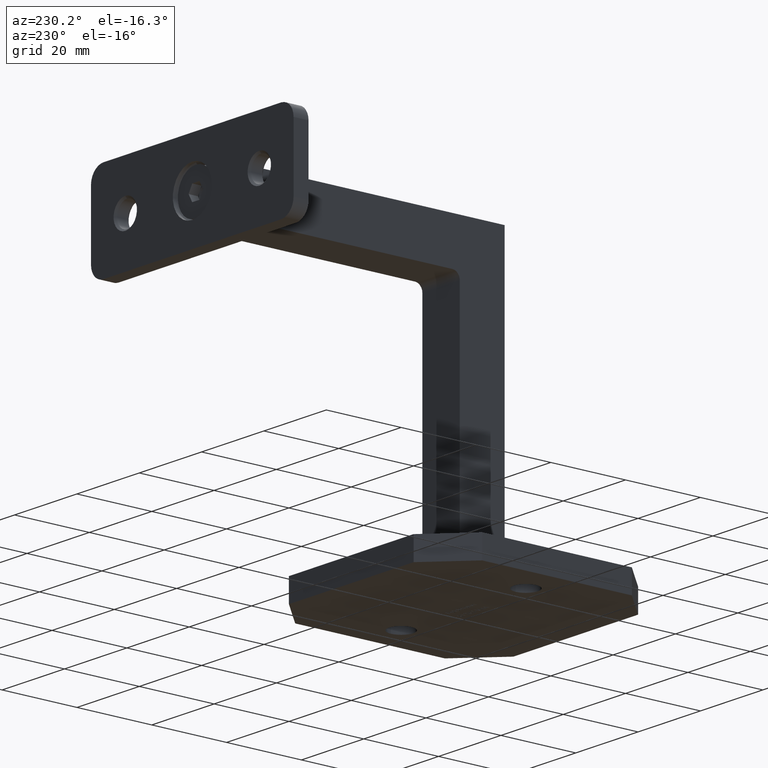
[diagram: clean part render]
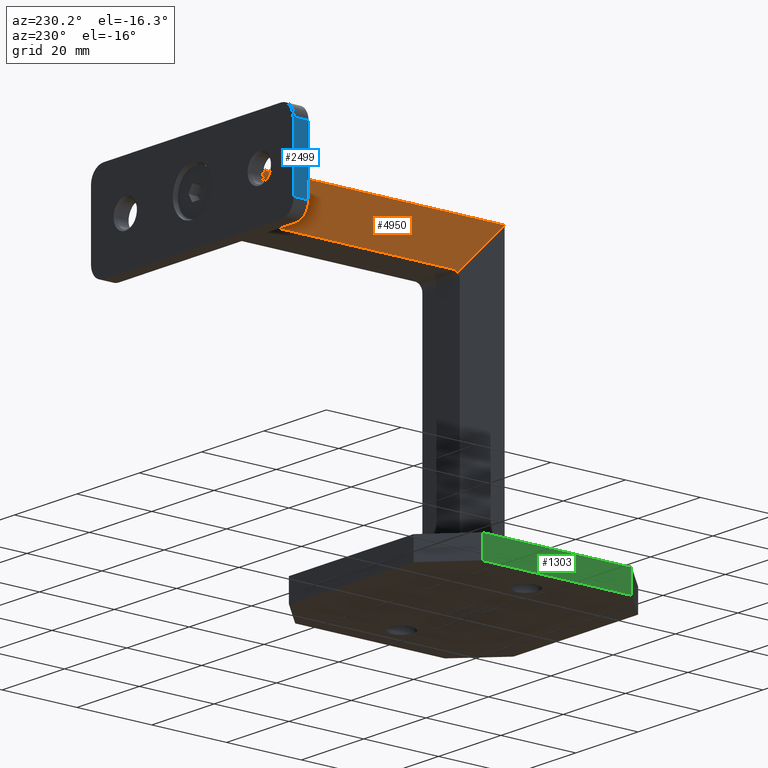
[diagram: same view with three faces highlighted in distinct colors, each labeled with its STEP entity id]
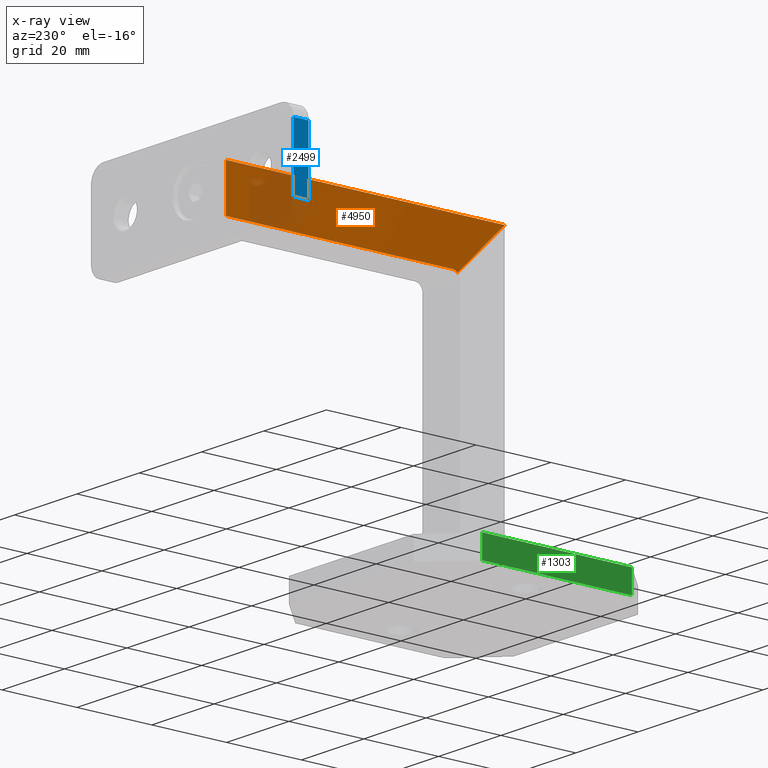
[diagram: x-ray of the same camera — body ghosted, the three highlighted faces saturated]
A machine part, auxiliary view with three faces highlighted in distinct colors.
The next image is the same camera in x-ray (body ghosted, the three faces saturated) — at least one of them is partly hidden behind the body in this view.
Their STEP definitions:

[orange] entity #4950 — the highlighted planar face has unit normal (1, 0, 0).
#1800 = VERTEX_POINT ( 'NONE', #13289 ) ;
#2454 = VECTOR ( 'NONE', #5880, 1000.000000000000000 ) ;
#3154 = DIRECTION ( 'NONE',  ( -1.445602896647339410E-16, 0.000000000000000000, 1.000000000000000000 ) ) ;
#3245 = EDGE_CURVE ( 'NONE', #1800, #18508, #17105, .T. ) ;
#4950 = ADVANCED_FACE ( 'NONE', ( #10665 ), #13741, .F. ) ;
#4984 = CARTESIAN_POINT ( 'NONE',  ( -5.999999999999997335, 7.999999999999992895, 64.99999999999997158 ) ) ;
#5278 = CARTESIAN_POINT ( 'NONE',  ( -5.999999999999999112, -6.000000000000011546, 78.99999999999997158 ) ) ;
#5509 = VECTOR ( 'NONE', #20075, 1000.000000000000000 ) ;
#5870 = CARTESIAN_POINT ( 'NONE',  ( -5.999999999999999112, -6.000000000000011546, 78.99999999999997158 ) ) ;
#5880 = DIRECTION ( 'NONE',  ( 0.000000000000000000, 1.000000000000000000, 0.000000000000000000 ) ) ;
#5898 = AXIS2_PLACEMENT_3D ( 'NONE', #17160, #22446, #18874 ) ;
#6310 = LINE ( 'NONE', #5278, #8813 ) ;
#6504 = EDGE_CURVE ( 'NONE', #7336, #17936, #10704, .T. ) ;
#6863 = CARTESIAN_POINT ( 'NONE',  ( -5.999999999999999112, 68.49999999999998579, 78.99999999999997158 ) ) ;
#7132 = EDGE_LOOP ( 'NONE', ( #22220, #7488, #11928, #14655, #14183 ) ) ;
#7336 = VERTEX_POINT ( 'NONE', #11116 ) ;
#7488 = ORIENTED_EDGE ( 'NONE', *, *, #13282, .F. ) ;
#8813 = VECTOR ( 'NONE', #19452, 1000.000000000000000 ) ;
#10665 = FACE_OUTER_BOUND ( 'NONE', #7132, .T. ) ;
#10704 = CIRCLE ( 'NONE', #12488, 2.000000000000001776 ) ;
#10730 = VERTEX_POINT ( 'NONE', #5870 ) ;
#11116 = CARTESIAN_POINT ( 'NONE',  ( -5.999999999999997335, 7.999999999999992895, 66.99999999999997158 ) ) ;
#11928 = ORIENTED_EDGE ( 'NONE', *, *, #6504, .T. ) ;
#11971 = CARTESIAN_POINT ( 'NONE',  ( -5.999999999999999112, 68.49999999999998579, 78.48528137423856776 ) ) ;
#12488 = AXIS2_PLACEMENT_3D ( 'NONE', #4984, #22810, #18914 ) ;
#13057 = LINE ( 'NONE', #14528, #2454 ) ;
#13282 = EDGE_CURVE ( 'NONE', #7336, #1800, #13057, .T. ) ;
#13289 = CARTESIAN_POINT ( 'NONE',  ( -5.999999999999997335, 68.49999999999998579, 66.99999999999997158 ) ) ;
#13741 = PLANE ( 'NONE',  #5898 ) ;
#14055 = CARTESIAN_POINT ( 'NONE',  ( -5.999999999999997335, 6.585786437626902412, 66.41421356237306384 ) ) ;
#14183 = ORIENTED_EDGE ( 'NONE', *, *, #15141, .T. ) ;
#14450 = EDGE_CURVE ( 'NONE', #10730, #17936, #20816, .T. ) ;
#14528 = CARTESIAN_POINT ( 'NONE',  ( -5.999999999999997335, 5.999999999999991118, 66.99999999999997158 ) ) ;
#14655 = ORIENTED_EDGE ( 'NONE', *, *, #14450, .F. ) ;
#14883 = VECTOR ( 'NONE', #3154, 1000.000000000000000 ) ;
#15141 = EDGE_CURVE ( 'NONE', #10730, #18508, #6310, .T. ) ;
#17105 = LINE ( 'NONE', #11971, #14883 ) ;
#17160 = CARTESIAN_POINT ( 'NONE',  ( -5.999999999999999112, -5.485281374238592633, 78.48528137423856776 ) ) ;
#17936 = VERTEX_POINT ( 'NONE', #14055 ) ;
#18508 = VERTEX_POINT ( 'NONE', #6863 ) ;
#18874 = DIRECTION ( 'NONE',  ( 1.445602896647339410E-16, 0.000000000000000000, -1.000000000000000000 ) ) ;
#18914 = DIRECTION ( 'NONE',  ( 0.000000000000000000, 0.000000000000000000, -1.000000000000000000 ) ) ;
#19452 = DIRECTION ( 'NONE',  ( 0.000000000000000000, 1.000000000000000000, 0.000000000000000000 ) ) ;
#20075 = DIRECTION ( 'NONE',  ( 1.022195611122249425E-16, 0.7071067811865475727, -0.7071067811865474617 ) ) ;
#20816 = LINE ( 'NONE', #21942, #5509 ) ;
#21942 = CARTESIAN_POINT ( 'NONE',  ( -5.999999999999999112, -5.485281374238592633, 78.48528137423856776 ) ) ;
#22220 = ORIENTED_EDGE ( 'NONE', *, *, #3245, .F. ) ;
#22446 = DIRECTION ( 'NONE',  ( 1.000000000000000000, -0.000000000000000000, 1.445602896647339410E-16 ) ) ;
#22810 = DIRECTION ( 'NONE',  ( 1.000000000000000000, -0.000000000000000000, 1.445602896647339410E-16 ) ) ;

[blue] entity #2499 — the highlighted planar face has unit normal (1, 0, 0).
#721 = CARTESIAN_POINT ( 'NONE',  ( -32.50000000000000000, 2.000000000000000000, -12.50000000000000178 ) ) ;
#863 = PLANE ( 'NONE',  #7798 ) ;
#1783 = CARTESIAN_POINT ( 'NONE',  ( -32.50000000000000000, -2.000000000000000000, -12.50000000000000178 ) ) ;
#1804 = CARTESIAN_POINT ( 'NONE',  ( -32.50000000000000000, 2.000000000000000000, 8.499999999999998224 ) ) ;
#2499 = ADVANCED_FACE ( 'NONE', ( #8205 ), #863, .F. ) ;
#2606 = DIRECTION ( 'NONE',  ( -0.000000000000000000, 1.000000000000000000, -0.000000000000000000 ) ) ;
#2797 = DIRECTION ( 'NONE',  ( 0.000000000000000000, -1.000000000000000000, 0.000000000000000000 ) ) ;
#2804 = EDGE_CURVE ( 'NONE', #12776, #6278, #4047, .T. ) ;
#4047 = LINE ( 'NONE', #12079, #15455 ) ;
#4183 = VERTEX_POINT ( 'NONE', #4973 ) ;
#4369 = DIRECTION ( 'NONE',  ( 1.000000000000000000, 0.000000000000000000, 0.000000000000000000 ) ) ;
#4868 = LINE ( 'NONE', #20360, #22134 ) ;
#4973 = CARTESIAN_POINT ( 'NONE',  ( -32.50000000000000000, -2.000000000000000000, 8.499999999999998224 ) ) ;
#4986 = DIRECTION ( 'NONE',  ( 0.000000000000000000, 0.000000000000000000, 1.000000000000000000 ) ) ;
#6278 = VERTEX_POINT ( 'NONE', #1804 ) ;
#6703 = VECTOR ( 'NONE', #2797, 1000.000000000000000 ) ;
#7798 = AXIS2_PLACEMENT_3D ( 'NONE', #721, #4369, #22118 ) ;
#8205 = FACE_OUTER_BOUND ( 'NONE', #16296, .T. ) ;
#10917 = LINE ( 'NONE', #11699, #6703 ) ;
#11693 = VERTEX_POINT ( 'NONE', #17580 ) ;
#11699 = CARTESIAN_POINT ( 'NONE',  ( -32.50000000000000000, 2.000000000000000000, -8.500000000000001776 ) ) ;
#12079 = CARTESIAN_POINT ( 'NONE',  ( -32.50000000000000000, 2.000000000000000000, -12.50000000000000178 ) ) ;
#12776 = VERTEX_POINT ( 'NONE', #21191 ) ;
#12783 = DIRECTION ( 'NONE',  ( 0.000000000000000000, 0.000000000000000000, 1.000000000000000000 ) ) ;
#15455 = VECTOR ( 'NONE', #4986, 1000.000000000000000 ) ;
#15460 = ORIENTED_EDGE ( 'NONE', *, *, #20170, .T. ) ;
#16296 = EDGE_LOOP ( 'NONE', ( #17866, #21615, #18041, #15460 ) ) ;
#16702 = VECTOR ( 'NONE', #12783, 1000.000000000000000 ) ;
#17073 = EDGE_CURVE ( 'NONE', #4183, #6278, #4868, .T. ) ;
#17580 = CARTESIAN_POINT ( 'NONE',  ( -32.50000000000000000, -2.000000000000000000, -8.500000000000001776 ) ) ;
#17866 = ORIENTED_EDGE ( 'NONE', *, *, #21814, .T. ) ;
#18041 = ORIENTED_EDGE ( 'NONE', *, *, #2804, .F. ) ;
#20170 = EDGE_CURVE ( 'NONE', #12776, #11693, #10917, .T. ) ;
#20360 = CARTESIAN_POINT ( 'NONE',  ( -32.50000000000000000, 2.000000000000000000, 8.499999999999998224 ) ) ;
#21191 = CARTESIAN_POINT ( 'NONE',  ( -32.50000000000000000, 2.000000000000000000, -8.500000000000001776 ) ) ;
#21440 = LINE ( 'NONE', #1783, #16702 ) ;
#21615 = ORIENTED_EDGE ( 'NONE', *, *, #17073, .T. ) ;
#21814 = EDGE_CURVE ( 'NONE', #11693, #4183, #21440, .T. ) ;
#22118 = DIRECTION ( 'NONE',  ( 0.000000000000000000, 0.000000000000000000, -1.000000000000000000 ) ) ;
#22134 = VECTOR ( 'NONE', #2606, 1000.000000000000000 ) ;

[green] entity #1303 — the highlighted planar face has unit normal (1, 0, 0).
#248 = EDGE_CURVE ( 'NONE', #4326, #19076, #5765, .T. ) ;
#1071 = DIRECTION ( 'NONE',  ( 1.000000000000000000, 5.782411586589357392E-17, -0.000000000000000000 ) ) ;
#1172 = LINE ( 'NONE', #3893, #1454 ) ;
#1226 = DIRECTION ( 'NONE',  ( -5.782411586589357392E-17, 1.000000000000000000, 0.000000000000000000 ) ) ;
#1303 = ADVANCED_FACE ( 'NONE', ( #22181 ), #17257, .F. ) ;
#1454 = VECTOR ( 'NONE', #5682, 1000.000000000000000 ) ;
#2208 = CARTESIAN_POINT ( 'NONE',  ( -30.00000000000001066, 20.00000000000002487, 3.000000000000000000 ) ) ;
#2306 = ORIENTED_EDGE ( 'NONE', *, *, #248, .T. ) ;
#3893 = CARTESIAN_POINT ( 'NONE',  ( -30.00000000000000711, -19.99999999999995381, 3.000000000000000000 ) ) ;
#4021 = ORIENTED_EDGE ( 'NONE', *, *, #16413, .T. ) ;
#4326 = VERTEX_POINT ( 'NONE', #21618 ) ;
#4584 = DIRECTION ( 'NONE',  ( 5.782411586589357392E-17, -1.000000000000000000, 0.000000000000000000 ) ) ;
#5682 = DIRECTION ( 'NONE',  ( 0.000000000000000000, 0.000000000000000000, 1.000000000000000000 ) ) ;
#5765 = LINE ( 'NONE', #2208, #14129 ) ;
#6581 = CARTESIAN_POINT ( 'NONE',  ( -30.00000000000001066, 30.00000000000000711, 3.000000000000000000 ) ) ;
#7023 = VECTOR ( 'NONE', #20019, 1000.000000000000000 ) ;
#8502 = EDGE_CURVE ( 'NONE', #20401, #21080, #1172, .T. ) ;
#9514 = DIRECTION ( 'NONE',  ( 0.000000000000000000, 0.000000000000000000, -1.000000000000000000 ) ) ;
#9745 = EDGE_CURVE ( 'NONE', #4326, #21080, #11772, .T. ) ;
#9835 = ORIENTED_EDGE ( 'NONE', *, *, #8502, .T. ) ;
#10374 = CARTESIAN_POINT ( 'NONE',  ( -30.00000000000000711, -19.99999999999994671, 3.000000000000000000 ) ) ;
#10814 = ORIENTED_EDGE ( 'NONE', *, *, #9745, .F. ) ;
#11056 = CARTESIAN_POINT ( 'NONE',  ( -30.00000000000001066, 20.00000000000002487, -3.000000000000000000 ) ) ;
#11772 = LINE ( 'NONE', #16985, #7023 ) ;
#12711 = VECTOR ( 'NONE', #4584, 1000.000000000000000 ) ;
#14129 = VECTOR ( 'NONE', #9514, 1000.000000000000000 ) ;
#16413 = EDGE_CURVE ( 'NONE', #19076, #20401, #22718, .T. ) ;
#16985 = CARTESIAN_POINT ( 'NONE',  ( -30.00000000000001066, 30.00000000000000711, 3.000000000000000000 ) ) ;
#17257 = PLANE ( 'NONE',  #22880 ) ;
#18097 = EDGE_LOOP ( 'NONE', ( #4021, #9835, #10814, #2306 ) ) ;
#18522 = CARTESIAN_POINT ( 'NONE',  ( -30.00000000000001066, 30.00000000000000711, -3.000000000000000000 ) ) ;
#19076 = VERTEX_POINT ( 'NONE', #11056 ) ;
#19900 = CARTESIAN_POINT ( 'NONE',  ( -30.00000000000000711, -19.99999999999995381, -3.000000000000000000 ) ) ;
#20019 = DIRECTION ( 'NONE',  ( 5.782411586589357392E-17, -1.000000000000000000, 0.000000000000000000 ) ) ;
#20401 = VERTEX_POINT ( 'NONE', #19900 ) ;
#21080 = VERTEX_POINT ( 'NONE', #10374 ) ;
#21618 = CARTESIAN_POINT ( 'NONE',  ( -30.00000000000001066, 20.00000000000003197, 3.000000000000000000 ) ) ;
#22181 = FACE_OUTER_BOUND ( 'NONE', #18097, .T. ) ;
#22718 = LINE ( 'NONE', #18522, #12711 ) ;
#22880 = AXIS2_PLACEMENT_3D ( 'NONE', #6581, #1071, #1226 ) ;